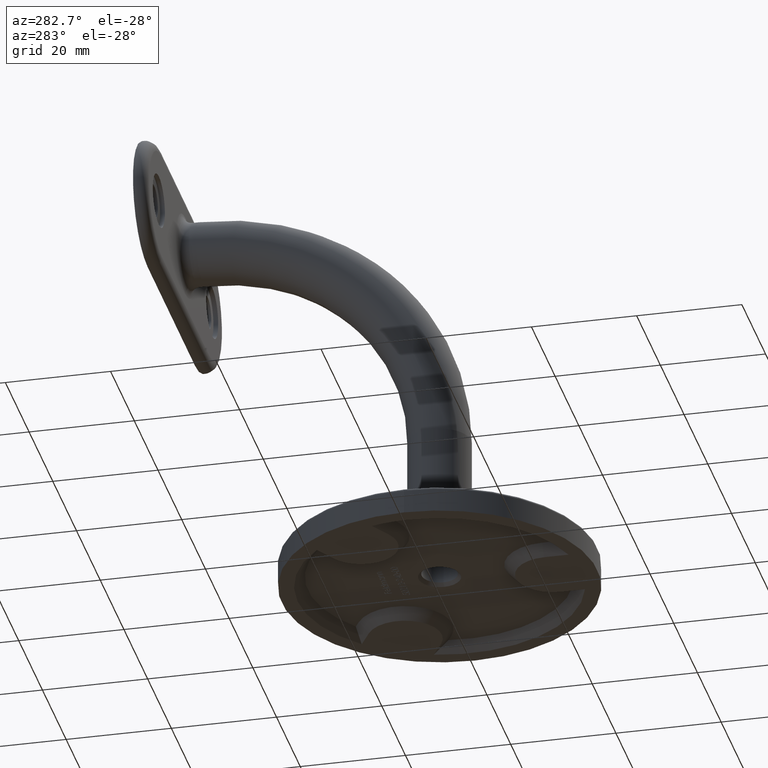
[diagram: clean part render]
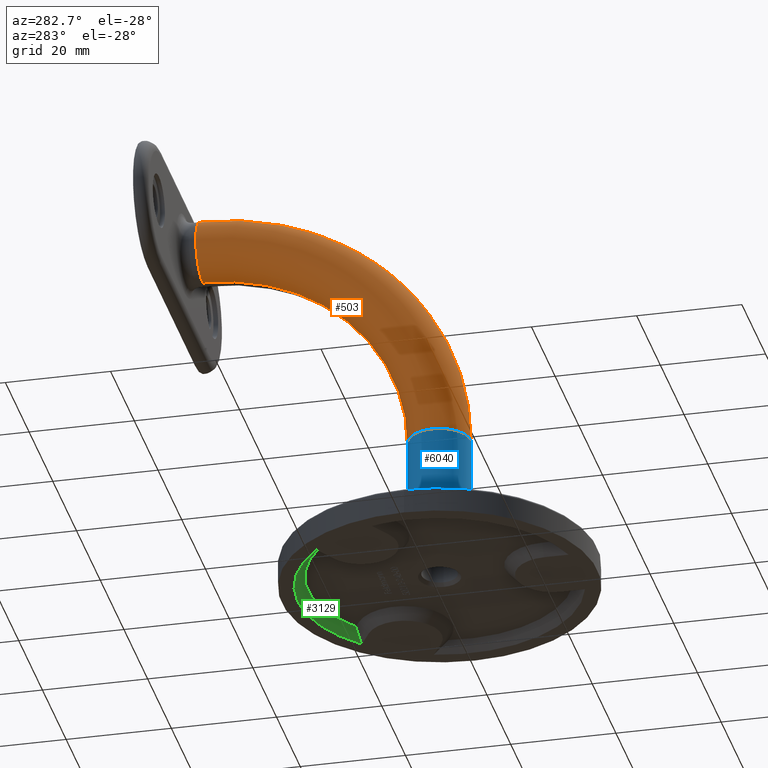
[diagram: same view with three faces highlighted in distinct colors, each labeled with its STEP entity id]
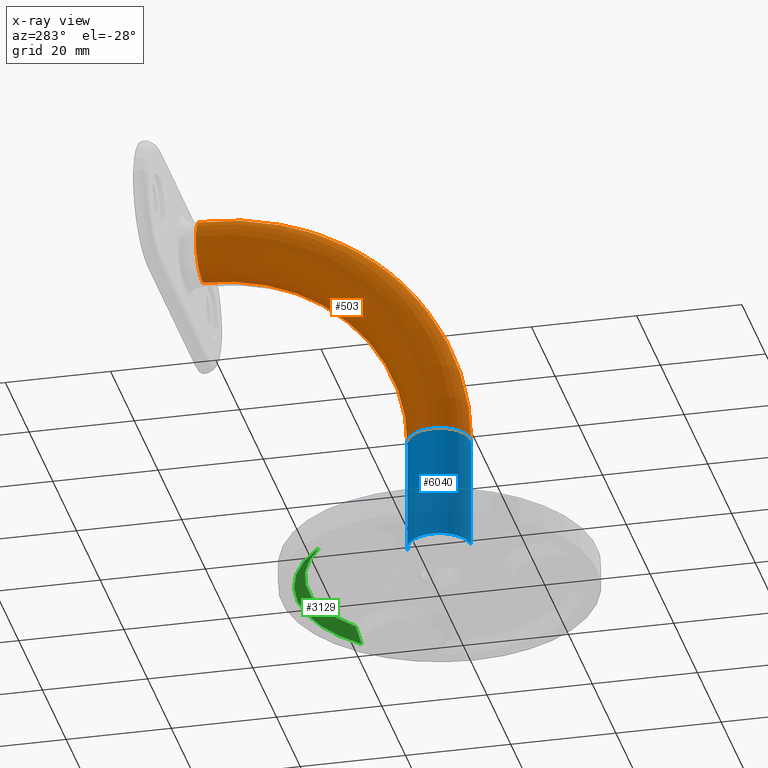
[diagram: x-ray of the same camera — body ghosted, the three highlighted faces saturated]
A machine part, auxiliary view with three faces highlighted in distinct colors.
The next image is the same camera in x-ray (body ghosted, the three faces saturated) — at least one of them is partly hidden behind the body in this view.
Their STEP definitions:

[orange] entity #503 — the highlighted toroidal blend (fillet) surface has major radius 45 mm and minor (blend) radius 6 mm.
#180 = DIRECTION ( 'NONE',  ( -1.000000000000000000, -0.000000000000000000, -0.000000000000000000 ) ) ;
#503 = ADVANCED_FACE ( 'NONE', ( #12707 ), #7693, .T. ) ;
#1122 = AXIS2_PLACEMENT_3D ( 'NONE', #11203, #180, #11247 ) ;
#1173 = CARTESIAN_POINT ( 'NONE',  ( 0.000000000000000000, 5.999999999999993783, 29.99999999999999289 ) ) ;
#1257 = DIRECTION ( 'NONE',  ( 0.000000000000000000, 0.000000000000000000, -1.000000000000000000 ) ) ;
#1683 = DIRECTION ( 'NONE',  ( -1.000000000000000000, -0.000000000000000000, -0.000000000000000000 ) ) ;
#2527 = VERTEX_POINT ( 'NONE', #9209 ) ;
#2552 = DIRECTION ( 'NONE',  ( -1.000000000000000000, 0.000000000000000000, 0.000000000000000000 ) ) ;
#2698 = AXIS2_PLACEMENT_3D ( 'NONE', #10097, #1683, #11327 ) ;
#3075 = AXIS2_PLACEMENT_3D ( 'NONE', #5707, #12945, #11746 ) ;
#3111 = VERTEX_POINT ( 'NONE', #1173 ) ;
#4146 = EDGE_CURVE ( 'NONE', #7142, #3111, #4487, .T. ) ;
#4369 = CIRCLE ( 'NONE', #3075, 6.000000000000000888 ) ;
#4487 = CIRCLE ( 'NONE', #12435, 6.000000000000000888 ) ;
#4588 = DIRECTION ( 'NONE',  ( 0.000000000000000000, 0.000000000000000000, 1.000000000000000000 ) ) ;
#5046 = ORIENTED_EDGE ( 'NONE', *, *, #10062, .T. ) ;
#5496 = CARTESIAN_POINT ( 'NONE',  ( 0.000000000000000000, 44.99999999999999289, 30.00000000000000000 ) ) ;
#5707 = CARTESIAN_POINT ( 'NONE',  ( 0.000000000000000000, 45.00000000000000711, 75.00000000000001421 ) ) ;
#5932 = DIRECTION ( 'NONE',  ( -1.000000000000000000, -0.000000000000000000, -0.000000000000000000 ) ) ;
#6172 = CARTESIAN_POINT ( 'NONE',  ( 0.000000000000000000, -6.938893903907179468E-15, 29.99999999999999289 ) ) ;
#7142 = VERTEX_POINT ( 'NONE', #15702 ) ;
#7693 = TOROIDAL_SURFACE ( 'NONE', #8306, 45.00000000000000000, 6.000000000000000888 ) ;
#8211 = ORIENTED_EDGE ( 'NONE', *, *, #4146, .F. ) ;
#8306 = AXIS2_PLACEMENT_3D ( 'NONE', #5496, #5932, #4588 ) ;
#8529 = VERTEX_POINT ( 'NONE', #9142 ) ;
#8677 = ORIENTED_EDGE ( 'NONE', *, *, #14098, .T. ) ;
#9106 = EDGE_LOOP ( 'NONE', ( #8211, #8677, #5046, #13514 ) ) ;
#9142 = CARTESIAN_POINT ( 'NONE',  ( 7.347880794884114806E-16, 45.00000000000000711, 69.00000000000000000 ) ) ;
#9209 = CARTESIAN_POINT ( 'NONE',  ( 0.000000000000000000, 45.00000000000000711, 81.00000000000001421 ) ) ;
#10062 = EDGE_CURVE ( 'NONE', #2527, #8529, #4369, .T. ) ;
#10097 = CARTESIAN_POINT ( 'NONE',  ( 0.000000000000000000, 44.99999999999999289, 30.00000000000000000 ) ) ;
#11203 = CARTESIAN_POINT ( 'NONE',  ( 7.347880794884120722E-16, 44.99999999999999289, 30.00000000000000000 ) ) ;
#11247 = DIRECTION ( 'NONE',  ( 0.000000000000000000, 0.000000000000000000, 1.000000000000000000 ) ) ;
#11327 = DIRECTION ( 'NONE',  ( 0.000000000000000000, 0.000000000000000000, 1.000000000000000000 ) ) ;
#11746 = DIRECTION ( 'NONE',  ( -1.000000000000000000, 0.000000000000000000, 0.000000000000000000 ) ) ;
#12313 = EDGE_CURVE ( 'NONE', #3111, #8529, #12817, .T. ) ;
#12435 = AXIS2_PLACEMENT_3D ( 'NONE', #6172, #1257, #2552 ) ;
#12707 = FACE_OUTER_BOUND ( 'NONE', #9106, .T. ) ;
#12817 = CIRCLE ( 'NONE', #1122, 39.00000000000000711 ) ;
#12945 = DIRECTION ( 'NONE',  ( 0.000000000000000000, -1.000000000000000000, 3.828568698926949435E-16 ) ) ;
#13514 = ORIENTED_EDGE ( 'NONE', *, *, #12313, .F. ) ;
#14098 = EDGE_CURVE ( 'NONE', #7142, #2527, #14471, .T. ) ;
#14471 = CIRCLE ( 'NONE', #2698, 50.99999999999999289 ) ;
#15702 = CARTESIAN_POINT ( 'NONE',  ( 7.347880794884123680E-16, -6.000000000000007994, 29.99999999999999289 ) ) ;

[blue] entity #6040 — the highlighted cylindrical surface (edge-blend (fillet) strip) has radius 6 mm, axis along (-0, 0, -1).
#150 = ORIENTED_EDGE ( 'NONE', *, *, #13278, .T. ) ;
#1173 = CARTESIAN_POINT ( 'NONE',  ( 0.000000000000000000, 5.999999999999993783, 29.99999999999999289 ) ) ;
#1179 = CARTESIAN_POINT ( 'NONE',  ( 7.347880794884120722E-16, -6.000000000000002665, 8.000000000000000000 ) ) ;
#1187 = CARTESIAN_POINT ( 'NONE',  ( 0.000000000000000000, -1.850371707708581349E-15, 8.000000000000000000 ) ) ;
#1257 = DIRECTION ( 'NONE',  ( 0.000000000000000000, 0.000000000000000000, -1.000000000000000000 ) ) ;
#1979 = VERTEX_POINT ( 'NONE', #13823 ) ;
#2500 = VECTOR ( 'NONE', #12583, 1000.000000000000000 ) ;
#2552 = DIRECTION ( 'NONE',  ( -1.000000000000000000, 0.000000000000000000, 0.000000000000000000 ) ) ;
#2656 = CARTESIAN_POINT ( 'NONE',  ( 7.347880794884120722E-16, -6.000000000000007994, 29.99999999999999289 ) ) ;
#2919 = DIRECTION ( 'NONE',  ( 1.000000000000000000, 0.000000000000000000, 0.000000000000000000 ) ) ;
#2951 = AXIS2_PLACEMENT_3D ( 'NONE', #3477, #7041, #10817 ) ;
#3111 = VERTEX_POINT ( 'NONE', #1173 ) ;
#3206 = CARTESIAN_POINT ( 'NONE',  ( 0.000000000000000000, 5.999999999999999112, 8.000000000000000000 ) ) ;
#3477 = CARTESIAN_POINT ( 'NONE',  ( 0.000000000000000000, -6.938893903907179468E-15, 29.99999999999999289 ) ) ;
#3679 = DIRECTION ( 'NONE',  ( 0.000000000000000000, 0.000000000000000000, 1.000000000000000000 ) ) ;
#3920 = LINE ( 'NONE', #5360, #11854 ) ;
#4146 = EDGE_CURVE ( 'NONE', #7142, #3111, #4487, .T. ) ;
#4487 = CIRCLE ( 'NONE', #12435, 6.000000000000000888 ) ;
#4650 = EDGE_LOOP ( 'NONE', ( #15855, #15594, #150, #9816, #13044 ) ) ;
#4902 = DIRECTION ( 'NONE',  ( 1.000000000000000000, 0.000000000000000000, 0.000000000000000000 ) ) ;
#5270 = CARTESIAN_POINT ( 'NONE',  ( 0.000000000000000000, -1.850371707708581349E-15, 8.000000000000000000 ) ) ;
#5360 = CARTESIAN_POINT ( 'NONE',  ( 0.000000000000000000, 5.999999999999993783, 29.99999999999999289 ) ) ;
#5605 = FACE_OUTER_BOUND ( 'NONE', #4650, .T. ) ;
#6040 = ADVANCED_FACE ( 'NONE', ( #5605 ), #11789, .T. ) ;
#6172 = CARTESIAN_POINT ( 'NONE',  ( 0.000000000000000000, -6.938893903907179468E-15, 29.99999999999999289 ) ) ;
#6678 = VERTEX_POINT ( 'NONE', #3206 ) ;
#6978 = CIRCLE ( 'NONE', #13479, 6.000000000000000888 ) ;
#7041 = DIRECTION ( 'NONE',  ( -0.000000000000000000, 2.312964634635727180E-16, -1.000000000000000000 ) ) ;
#7142 = VERTEX_POINT ( 'NONE', #15702 ) ;
#8772 = EDGE_CURVE ( 'NONE', #6678, #1979, #11712, .T. ) ;
#9816 = ORIENTED_EDGE ( 'NONE', *, *, #8772, .T. ) ;
#10817 = DIRECTION ( 'NONE',  ( 0.000000000000000000, 1.000000000000000000, 0.000000000000000000 ) ) ;
#11306 = DIRECTION ( 'NONE',  ( 0.000000000000000000, 0.000000000000000000, 1.000000000000000000 ) ) ;
#11712 = CIRCLE ( 'NONE', #15044, 6.000000000000000888 ) ;
#11789 = CYLINDRICAL_SURFACE ( 'NONE', #2951, 6.000000000000000888 ) ;
#11854 = VECTOR ( 'NONE', #14044, 1000.000000000000000 ) ;
#12435 = AXIS2_PLACEMENT_3D ( 'NONE', #6172, #1257, #2552 ) ;
#12583 = DIRECTION ( 'NONE',  ( -0.000000000000000000, 2.312964634635727180E-16, -1.000000000000000000 ) ) ;
#13044 = ORIENTED_EDGE ( 'NONE', *, *, #15204, .T. ) ;
#13278 = EDGE_CURVE ( 'NONE', #3111, #6678, #3920, .T. ) ;
#13479 = AXIS2_PLACEMENT_3D ( 'NONE', #1187, #3679, #4902 ) ;
#13823 = CARTESIAN_POINT ( 'NONE',  ( -6.000000000000000888, -9.318866083480665549E-16, 8.000000000000000000 ) ) ;
#14044 = DIRECTION ( 'NONE',  ( -0.000000000000000000, 2.312964634635727180E-16, -1.000000000000000000 ) ) ;
#14500 = LINE ( 'NONE', #2656, #2500 ) ;
#14891 = VERTEX_POINT ( 'NONE', #1179 ) ;
#15044 = AXIS2_PLACEMENT_3D ( 'NONE', #5270, #11306, #2919 ) ;
#15204 = EDGE_CURVE ( 'NONE', #1979, #14891, #6978, .T. ) ;
#15539 = EDGE_CURVE ( 'NONE', #7142, #14891, #14500, .T. ) ;
#15594 = ORIENTED_EDGE ( 'NONE', *, *, #4146, .T. ) ;
#15702 = CARTESIAN_POINT ( 'NONE',  ( 7.347880794884123680E-16, -6.000000000000007994, 29.99999999999999289 ) ) ;
#15855 = ORIENTED_EDGE ( 'NONE', *, *, #15539, .F. ) ;

[green] entity #3129 — the highlighted conical surface has half-angle 45 deg.
#9 = VERTEX_POINT ( 'NONE', #376 ) ;
#376 = CARTESIAN_POINT ( 'NONE',  ( 19.08317958127247493, 19.10058263689632696, -0.000000000000000000 ) ) ;
#1448 = ORIENTED_EDGE ( 'NONE', *, *, #2401, .T. ) ;
#1695 = CARTESIAN_POINT ( 'NONE',  ( 19.08317958127247493, 19.10058263689632696, -0.000000000000000000 ) ) ;
#2377 = CIRCLE ( 'NONE', #5418, 24.99999999999999289 ) ;
#2401 = EDGE_CURVE ( 'NONE', #6974, #9, #6631, .T. ) ;
#2689 = CARTESIAN_POINT ( 'NONE',  ( 0.000000000000000000, 0.000000000000000000, 2.000000000000000000 ) ) ;
#2839 = DIRECTION ( 'NONE',  ( -1.000000000000000000, 0.000000000000000000, 0.000000000000000000 ) ) ;
#3107 = CARTESIAN_POINT ( 'NONE',  ( -19.08317958127235414, 19.10058263689635183, 0.000000000000000000 ) ) ;
#3129 = ADVANCED_FACE ( 'NONE', ( #7771 ), #15113, .F. ) ;
#3933 = DIRECTION ( 'NONE',  ( -1.000000000000000000, 0.000000000000000000, 0.000000000000000000 ) ) ;
#4189 = DIRECTION ( 'NONE',  ( 0.000000000000000000, 0.000000000000000000, -1.000000000000000000 ) ) ;
#4281 = AXIS2_PLACEMENT_3D ( 'NONE', #14741, #5031, #10004 ) ;
#4310 = CARTESIAN_POINT ( 'NONE',  ( 15.69900987672419390, 19.45613242375050689, 2.000000000000000000 ) ) ;
#4875 = AXIS2_PLACEMENT_3D ( 'NONE', #14089, #4189, #2839 ) ;
#4877 = ORIENTED_EDGE ( 'NONE', *, *, #7643, .F. ) ;
#4942 = EDGE_CURVE ( 'NONE', #6974, #10398, #12646, .T. ) ;
#5031 = DIRECTION ( 'NONE',  ( 0.000000000000000000, 0.000000000000000000, -1.000000000000000000 ) ) ;
#5059 = ORIENTED_EDGE ( 'NONE', *, *, #13421, .T. ) ;
#5418 = AXIS2_PLACEMENT_3D ( 'NONE', #2689, #10081, #3933 ) ;
#6094 = VERTEX_POINT ( 'NONE', #10717 ) ;
#6631 = CIRCLE ( 'NONE', #4875, 26.99999999999999645 ) ;
#6898 = CARTESIAN_POINT ( 'NONE',  ( 17.96844727031889732, 19.24708150318236477, 0.6842378953061347691 ) ) ;
#6974 = VERTEX_POINT ( 'NONE', #8156 ) ;
#7643 = EDGE_CURVE ( 'NONE', #10398, #6094, #2377, .T. ) ;
#7771 = FACE_OUTER_BOUND ( 'NONE', #12544, .T. ) ;
#8156 = CARTESIAN_POINT ( 'NONE',  ( -19.08317958127235414, 19.10058263689635183, 0.000000000000000000 ) ) ;
#9314 = CARTESIAN_POINT ( 'NONE',  ( -16.84117576874551148, 19.36724681707273277, 1.351939860575525731 ) ) ;
#9374 = CARTESIAN_POINT ( 'NONE',  ( -17.96844727031882272, 19.24708150318242872, 0.6842378953061417635 ) ) ;
#9737 = B_SPLINE_CURVE_WITH_KNOTS ( 'NONE', 3,
 ( #1695, #6898, #14092, #4310 ),
 .UNSPECIFIED., .F., .F.,
 ( 4, 4 ),
 ( 0.000000000000000000, 0.003947026759488006520 ),
 .UNSPECIFIED. ) ;
#10004 = DIRECTION ( 'NONE',  ( -1.000000000000000000, 0.000000000000000000, 0.000000000000000000 ) ) ;
#10081 = DIRECTION ( 'NONE',  ( 0.000000000000000000, 0.000000000000000000, -1.000000000000000000 ) ) ;
#10398 = VERTEX_POINT ( 'NONE', #14965 ) ;
#10603 = CARTESIAN_POINT ( 'NONE',  ( -15.69900987672413351, 19.45613242375056018, 2.000000000000000000 ) ) ;
#10717 = CARTESIAN_POINT ( 'NONE',  ( 15.69900987672419390, 19.45613242375050689, 2.000000000000000000 ) ) ;
#11645 = ORIENTED_EDGE ( 'NONE', *, *, #4942, .F. ) ;
#12544 = EDGE_LOOP ( 'NONE', ( #5059, #4877, #11645, #1448 ) ) ;
#12646 = B_SPLINE_CURVE_WITH_KNOTS ( 'NONE', 3,
 ( #3107, #9374, #9314, #10603 ),
 .UNSPECIFIED., .F., .F.,
 ( 4, 4 ),
 ( 0.000000000000000000, 0.003947026759487976162 ),
 .UNSPECIFIED. ) ;
#13421 = EDGE_CURVE ( 'NONE', #9, #6094, #9737, .T. ) ;
#14089 = CARTESIAN_POINT ( 'NONE',  ( 0.000000000000000000, 0.000000000000000000, 0.000000000000000000 ) ) ;
#14092 = CARTESIAN_POINT ( 'NONE',  ( 16.84117576874558253, 19.36724681707267592, 1.351939860575521291 ) ) ;
#14741 = CARTESIAN_POINT ( 'NONE',  ( 0.000000000000000000, 0.000000000000000000, 2.000000000000000000 ) ) ;
#14965 = CARTESIAN_POINT ( 'NONE',  ( -15.69900987672413351, 19.45613242375056018, 2.000000000000000000 ) ) ;
#15113 = CONICAL_SURFACE ( 'NONE', #4281, 24.99999999999999289, 0.7853981633974482790 ) ;